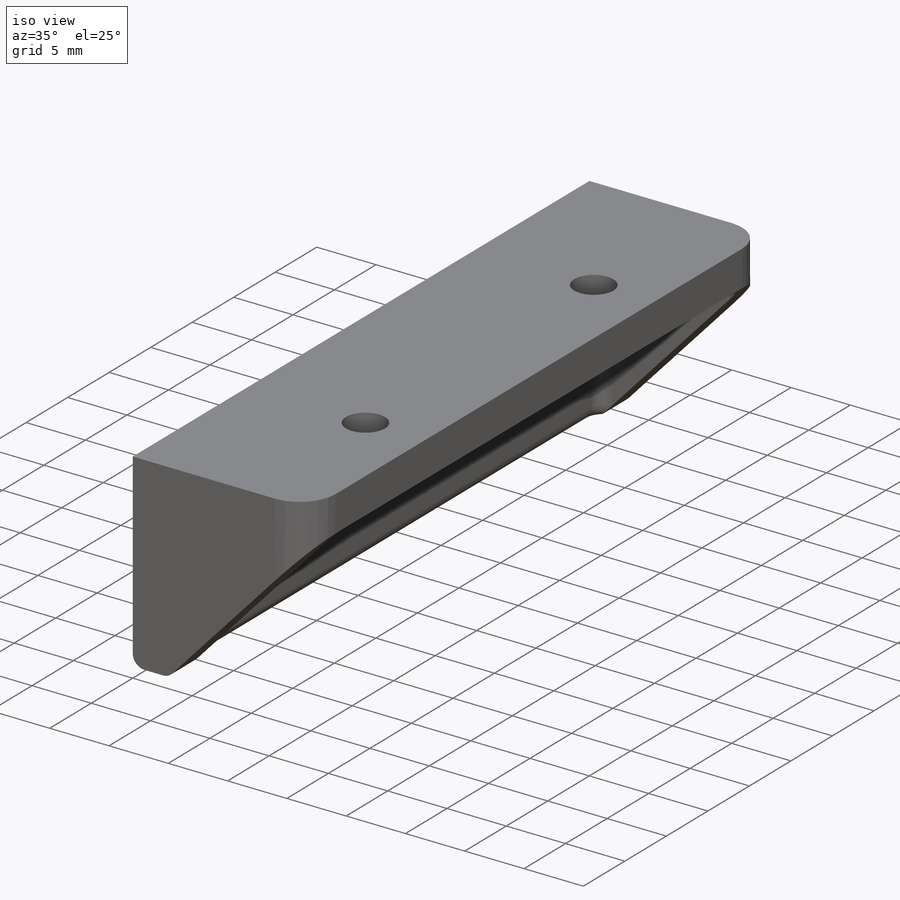
[diagram: iso view]
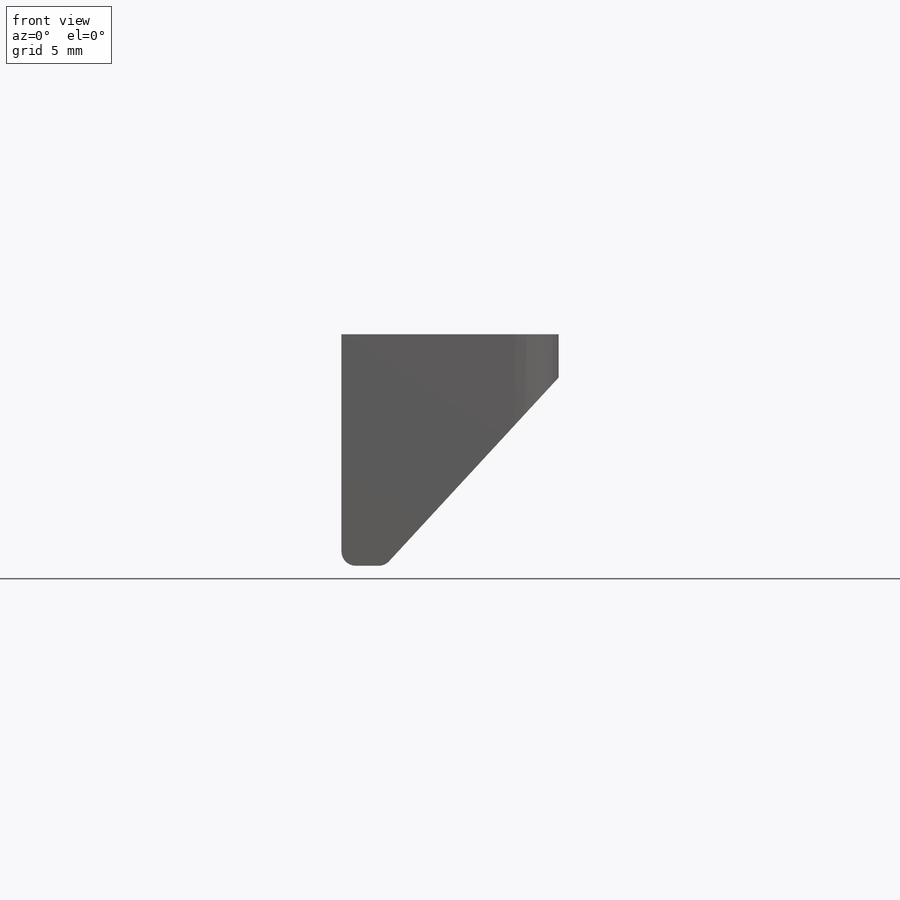
[diagram: front view]
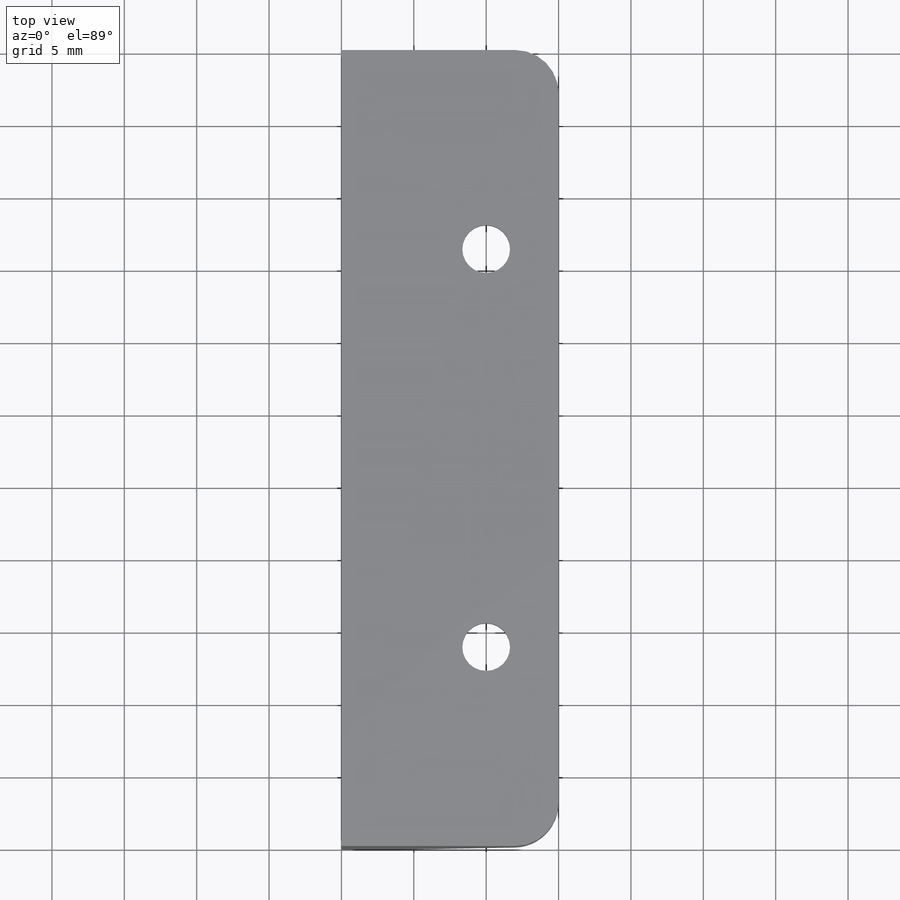
[diagram: top view]
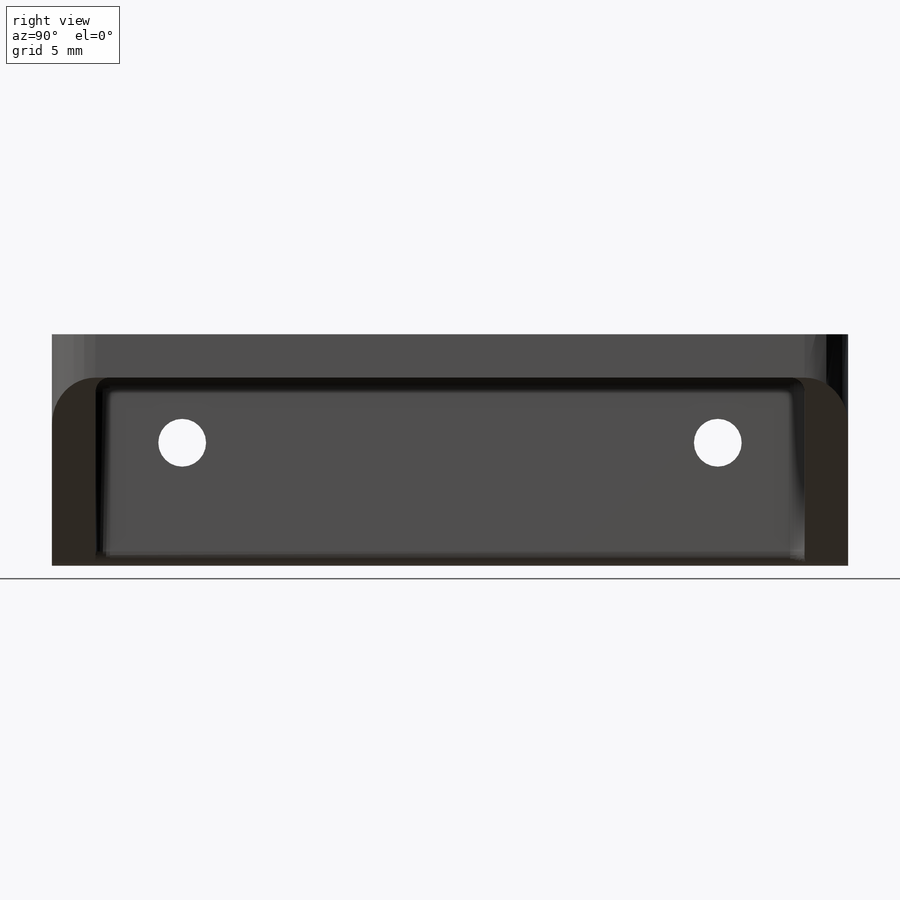
[diagram: right view]
SOLIDWORKS PART (.sldprt)
format: sldprt  version: not decoded by parser v0  size: 274,944 bytes
history: native  units: mm
features: sketch x6, plane x5, extrude x3, fillet x3, cut_extrude x3, material x1 (+10 scaffold rows collapsed)
feature tree (31):
  scaffold x10  (default folders/planes/origin — collapsed)
  material  "Matériau <non spécifié>"
  plane  "Plan de face"
  plane  "Plan de dessus"
  plane  "Plan de droite"
  sketch  "Esquisse2"  dims[D5=1.0mm D1=15.0mm D2=3.0mm D3=3.0mm D4=13.0mm]
  extrude  "Boss.-Extru.1"  Depth=55mm
  plane  "Plan1"
  sketch  "Esquisse3"
  extrude  "Boss.-Extru.2"  Depth=3mm
  plane  "Plan2"
  sketch  "Esquisse4"
  extrude  "Boss.-Extru.3"  Depth=3mm
  fillet  "Congé1"  Radius=3mm
  fillet  "Congé2"  Radius=1mm
  fillet  "Congé3"  Radius=1mm
  sketch  "Esquisse5"  dims[D1=3.3mm D2=3.3mm D3=10.0mm D4=27.5mm]
  cut_extrude  "Enlèv. mat.-Extru.1"  [1 undecoded]
  sketch  "Esquisse7"  dims[D1=6.0mm D2=6.0mm]
  cut_extrude  "Enlèv. mat.-Extru.2"  Depth=1mm
  sketch  "Esquisse8"  dims[c1.D2=3.3mm c1.D3=3.3mm c1.D1=37.0mm c2.D2=37.0mm c2.D4=37.0mm]
  cut_extrude  "Enlèv. mat.-Extru.3"  [1 undecoded]
decode coverage: 11 of 15 modeling features carry decoded parameters
note: 2 parameter values undecoded
note: suppression state not decoded; provenance and decode notes live in map.json
